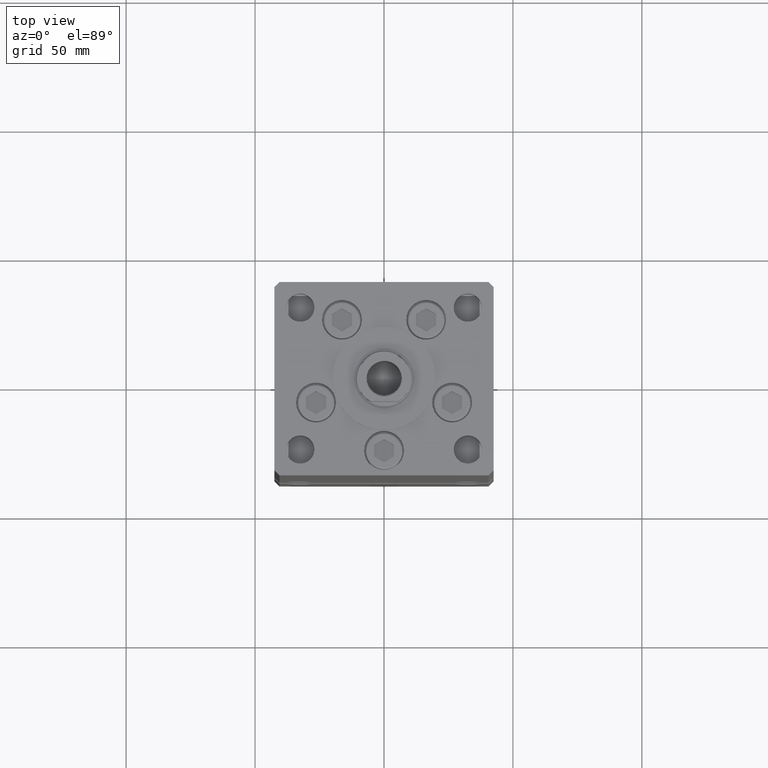
[diagram: clean part render]
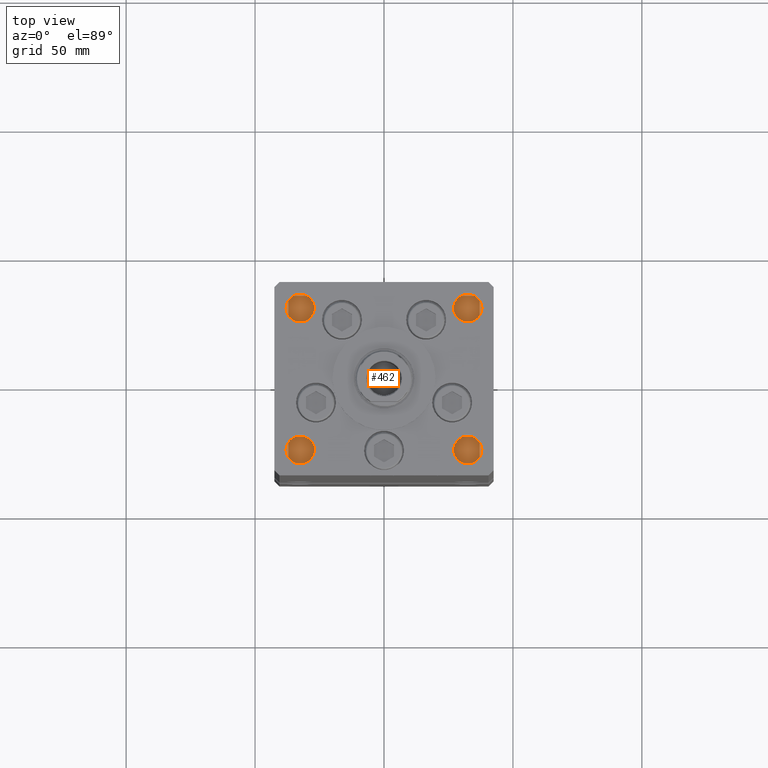
[diagram: same view with one face highlighted and labeled with its STEP entity id]
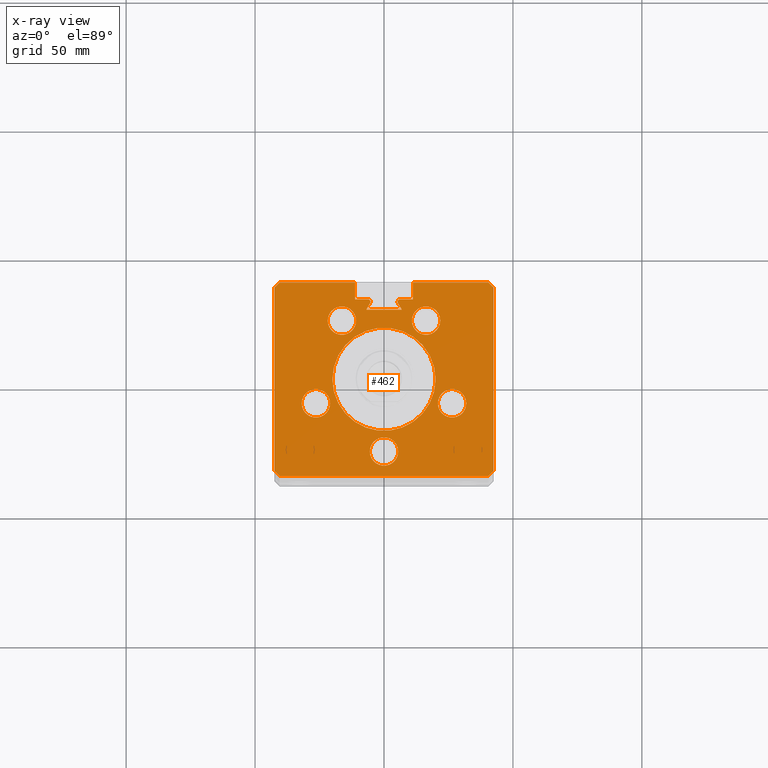
[diagram: x-ray of the same camera — body ghosted, the highlighted face saturated]
A machine part, top view. The second image highlights one B-rep face of the part: STEP entity #462.
The next image is the same camera in x-ray: the body ghosted, the highlighted face saturated — about 0% of this face is hidden behind the body in this view.
In plain terms, the highlighted planar face has unit normal (0, 0, -1).
Its self-contained STEP definition (entity closure, byte-faithful):
#30 = VERTEX_POINT ( 'NONE', #15072 ) ;
#270 = ORIENTED_EDGE ( 'NONE', *, *, #14479, .F. ) ;
#462 = ADVANCED_FACE ( 'NONE', ( #2395, #32227, #19842, #8008, #36538, #32488, #43796 ), #6945, .F. ) ;
#538 = CIRCLE ( 'NONE', #37458, 5.499999999999998224 ) ;
#1025 = DIRECTION ( 'NONE',  ( 0.7071067811865474617, -0.7071067811865474617, 0.000000000000000000 ) ) ;
#1323 = CARTESIAN_POINT ( 'NONE',  ( -40.50000000000000711, 37.50000000000000000, 218.5000000000000000 ) ) ;
#1530 = EDGE_CURVE ( 'NONE', #34392, #49526, #36023, .T. ) ;
#2390 = VECTOR ( 'NONE', #4753, 1000.000000000000000 ) ;
#2395 = FACE_BOUND ( 'NONE', #19877, .T. ) ;
#3162 = CARTESIAN_POINT ( 'NONE',  ( 10.82291334290543894, 22.75000000000000000, 218.5000000000000000 ) ) ;
#3621 = VECTOR ( 'NONE', #28473, 1000.000000000000114 ) ;
#3670 = ORIENTED_EDGE ( 'NONE', *, *, #46114, .F. ) ;
#4084 = CARTESIAN_POINT ( 'NONE',  ( -26.39865316429776954, -9.333333333333342807, 218.5000000000000000 ) ) ;
#4753 = DIRECTION ( 'NONE',  ( 0.000000000000000000, 1.000000000000000000, 0.000000000000000000 ) ) ;
#4828 = VERTEX_POINT ( 'NONE', #22495 ) ;
#4979 = DIRECTION ( 'NONE',  ( 1.000000000000000000, 0.000000000000000000, 0.000000000000000000 ) ) ;
#5123 = CARTESIAN_POINT ( 'NONE',  ( 20.00000000000000000, 2.449293598294706513E-15, 218.5000000000000000 ) ) ;
#5162 = EDGE_CURVE ( 'NONE', #33783, #51600, #48769, .T. ) ;
#5416 = ORIENTED_EDGE ( 'NONE', *, *, #39264, .F. ) ;
#5801 = VERTEX_POINT ( 'NONE', #41378 ) ;
#5906 = VECTOR ( 'NONE', #10680, 1000.000000000000114 ) ;
#6107 = DIRECTION ( 'NONE',  ( 1.000000000000000000, 0.000000000000000000, 0.000000000000000000 ) ) ;
#6190 = CARTESIAN_POINT ( 'NONE',  ( -16.84845819336020867, 9.727461873366657130, 218.5000000000000000 ) ) ;
#6417 = EDGE_CURVE ( 'NONE', #20406, #36373, #29326, .T. ) ;
#6490 = AXIS2_PLACEMENT_3D ( 'NONE', #32947, #20836, #37264 ) ;
#6523 = CARTESIAN_POINT ( 'NONE',  ( -20.89865316429777309, -9.333333333333342807, 218.5000000000000000 ) ) ;
#6658 = EDGE_CURVE ( 'NONE', #38090, #43198, #43037, .T. ) ;
#6940 = CARTESIAN_POINT ( 'NONE',  ( 11.24999999999999112, 37.50000000000000000, 218.5000000000000000 ) ) ;
#6945 = PLANE ( 'NONE',  #16231 ) ;
#7131 = CARTESIAN_POINT ( 'NONE',  ( -40.49999999999998579, -37.50000000000000711, 218.5000000000000000 ) ) ;
#7278 = EDGE_CURVE ( 'NONE', #45879, #41299, #48225, .T. ) ;
#8008 = FACE_BOUND ( 'NONE', #35235, .T. ) ;
#8118 = CARTESIAN_POINT ( 'NONE',  ( 16.84845819336020867, 9.727461873366657130, 218.5000000000000000 ) ) ;
#8524 = CIRCLE ( 'NONE', #45466, 5.500000000000000000 ) ;
#8623 = CARTESIAN_POINT ( 'NONE',  ( 40.50000000000000711, 37.50000000000000000, 218.5000000000000000 ) ) ;
#8865 = EDGE_CURVE ( 'NONE', #4828, #48680, #27146, .T. ) ;
#8934 = EDGE_CURVE ( 'NONE', #14057, #9628, #20938, .T. ) ;
#9283 = EDGE_CURVE ( 'NONE', #49405, #36387, #9647, .T. ) ;
#9539 = EDGE_CURVE ( 'NONE', #24204, #21402, #14764, .T. ) ;
#9573 = VECTOR ( 'NONE', #13459, 1000.000000000000114 ) ;
#9628 = VERTEX_POINT ( 'NONE', #46891 ) ;
#9647 = CIRCLE ( 'NONE', #22496, 5.499999999999998224 ) ;
#9729 = ORIENTED_EDGE ( 'NONE', *, *, #6658, .F. ) ;
#9857 = CARTESIAN_POINT ( 'NONE',  ( -42.50000000000001421, 35.50000000000000711, 218.5000000000000000 ) ) ;
#10273 = CARTESIAN_POINT ( 'NONE',  ( 0.000000000000000000, 0.000000000000000000, 218.5000000000000000 ) ) ;
#10308 = EDGE_CURVE ( 'NONE', #34392, #48712, #11876, .T. ) ;
#10680 = DIRECTION ( 'NONE',  ( -0.7071067811865500152, -0.7071067811865451302, 0.000000000000000000 ) ) ;
#11303 = DIRECTION ( 'NONE',  ( 0.000000000000000000, 0.000000000000000000, 1.000000000000000000 ) ) ;
#11329 = ORIENTED_EDGE ( 'NONE', *, *, #8934, .F. ) ;
#11346 = DIRECTION ( 'NONE',  ( 0.4999999999999994449, -0.8660254037844390407, 0.000000000000000000 ) ) ;
#11610 = CARTESIAN_POINT ( 'NONE',  ( -5.499999999999998224, -28.00000000000000000, 218.5000000000000000 ) ) ;
#11822 = EDGE_CURVE ( 'NONE', #36373, #14057, #48033, .T. ) ;
#11876 = LINE ( 'NONE', #8118, #49923 ) ;
#12404 = DIRECTION ( 'NONE',  ( 0.000000000000000000, 0.000000000000000000, 1.000000000000000000 ) ) ;
#12532 = ORIENTED_EDGE ( 'NONE', *, *, #1530, .F. ) ;
#12573 = CARTESIAN_POINT ( 'NONE',  ( -42.49999999999998579, -35.50000000000000711, 218.5000000000000000 ) ) ;
#12688 = DIRECTION ( 'NONE',  ( 1.000000000000000000, 0.000000000000000000, 0.000000000000000000 ) ) ;
#13040 = CARTESIAN_POINT ( 'NONE',  ( 16.32291334290543361, 22.75000000000000000, 218.5000000000000000 ) ) ;
#13077 = CARTESIAN_POINT ( 'NONE',  ( -11.24999999999999822, 0.000000000000000000, 218.5000000000000000 ) ) ;
#13078 = CARTESIAN_POINT ( 'NONE',  ( -11.24999999999999822, 37.50000000000000000, 218.5000000000000000 ) ) ;
#13459 = DIRECTION ( 'NONE',  ( 0.7071067811865500152, -0.7071067811865451302, 0.000000000000000000 ) ) ;
#13563 = DIRECTION ( 'NONE',  ( 0.000000000000000000, 0.000000000000000000, 1.000000000000000000 ) ) ;
#13876 = CARTESIAN_POINT ( 'NONE',  ( -11.24999999999999822, 31.00000000000000000, 218.5000000000000000 ) ) ;
#13912 = EDGE_CURVE ( 'NONE', #48712, #4828, #38302, .T. ) ;
#14057 = VERTEX_POINT ( 'NONE', #52491 ) ;
#14124 = DIRECTION ( 'NONE',  ( 1.000000000000000000, 0.000000000000000000, 0.000000000000000000 ) ) ;
#14479 = EDGE_CURVE ( 'NONE', #52620, #49742, #37132, .T. ) ;
#14764 = CIRCLE ( 'NONE', #23370, 5.500000000000000000 ) ;
#15056 = CARTESIAN_POINT ( 'NONE',  ( -42.49999999999998579, -35.50000000000000711, 218.5000000000000000 ) ) ;
#15072 = CARTESIAN_POINT ( 'NONE',  ( 31.89865316429776954, -9.333333333333339255, 218.5000000000000000 ) ) ;
#15647 = CARTESIAN_POINT ( 'NONE',  ( 11.24999999999999822, 0.000000000000000000, 218.5000000000000000 ) ) ;
#15845 = DIRECTION ( 'NONE',  ( 0.000000000000000000, 0.000000000000000000, -1.000000000000000000 ) ) ;
#15902 = VERTEX_POINT ( 'NONE', #7131 ) ;
#16069 = DIRECTION ( 'NONE',  ( 0.000000000000000000, 0.000000000000000000, -1.000000000000000000 ) ) ;
#16231 = AXIS2_PLACEMENT_3D ( 'NONE', #48898, #16069, #19045 ) ;
#16712 = CARTESIAN_POINT ( 'NONE',  ( -6.183333333333997928, 30.06666666666599852, 218.5000000000000000 ) ) ;
#16763 = CARTESIAN_POINT ( 'NONE',  ( 6.876153656360465938, 26.99999999999986855, 218.5000000000000000 ) ) ;
#16792 = CARTESIAN_POINT ( 'NONE',  ( 5.500000000000001776, -28.00000000000000000, 218.5000000000000000 ) ) ;
#16841 = CARTESIAN_POINT ( 'NONE',  ( 6.183333333333997928, 31.00000000000000000, 218.5000000000000000 ) ) ;
#17313 = DIRECTION ( 'NONE',  ( 0.000000000000000000, 0.000000000000000000, 1.000000000000000000 ) ) ;
#17401 = CIRCLE ( 'NONE', #22570, 5.499999999999998224 ) ;
#17936 = CARTESIAN_POINT ( 'NONE',  ( 6.183333333333997928, 30.06666666666599852, 218.5000000000000000 ) ) ;
#18037 = LINE ( 'NONE', #34458, #36825 ) ;
#18126 = EDGE_CURVE ( 'NONE', #49742, #48680, #42428, .T. ) ;
#18380 = CARTESIAN_POINT ( 'NONE',  ( -20.00000000000000000, 0.000000000000000000, 218.5000000000000000 ) ) ;
#18564 = ORIENTED_EDGE ( 'NONE', *, *, #46691, .T. ) ;
#18595 = CARTESIAN_POINT ( 'NONE',  ( 26.39865316429776954, -9.333333333333339255, 218.5000000000000000 ) ) ;
#18681 = CARTESIAN_POINT ( 'NONE',  ( 0.000000000000000000, 31.00000000000000000, 218.5000000000000000 ) ) ;
#18749 = LINE ( 'NONE', #1323, #5906 ) ;
#18883 = EDGE_CURVE ( 'NONE', #15902, #9628, #38766, .T. ) ;
#19045 = DIRECTION ( 'NONE',  ( -1.000000000000000000, 0.000000000000000000, -0.000000000000000000 ) ) ;
#19228 = VERTEX_POINT ( 'NONE', #6940 ) ;
#19801 = ORIENTED_EDGE ( 'NONE', *, *, #47774, .F. ) ;
#19842 = FACE_BOUND ( 'NONE', #49470, .T. ) ;
#19877 = EDGE_LOOP ( 'NONE', ( #36104, #5416 ) ) ;
#19952 = VECTOR ( 'NONE', #47147, 1000.000000000000000 ) ;
#20005 = CIRCLE ( 'NONE', #49193, 5.499999999999998224 ) ;
#20118 = CIRCLE ( 'NONE', #45909, 5.499999999999998224 ) ;
#20280 = CARTESIAN_POINT ( 'NONE',  ( 1.714505518806294638E-15, -28.00000000000000000, 218.5000000000000000 ) ) ;
#20406 = VERTEX_POINT ( 'NONE', #36163 ) ;
#20546 = ORIENTED_EDGE ( 'NONE', *, *, #35838, .T. ) ;
#20737 = DIRECTION ( 'NONE',  ( 1.000000000000000000, 0.000000000000000000, 0.000000000000000000 ) ) ;
#20836 = DIRECTION ( 'NONE',  ( 0.000000000000000000, 0.000000000000000000, 1.000000000000000000 ) ) ;
#20938 = LINE ( 'NONE', #48923, #3621 ) ;
#21144 = DIRECTION ( 'NONE',  ( 0.000000000000000000, 0.000000000000000000, 1.000000000000000000 ) ) ;
#21402 = VERTEX_POINT ( 'NONE', #11610 ) ;
#21536 = ORIENTED_EDGE ( 'NONE', *, *, #9283, .F. ) ;
#22056 = EDGE_LOOP ( 'NONE', ( #49763, #9729 ) ) ;
#22093 = VERTEX_POINT ( 'NONE', #38567 ) ;
#22215 = LINE ( 'NONE', #9857, #29608 ) ;
#22495 = CARTESIAN_POINT ( 'NONE',  ( -6.876153656360465938, 26.99999999999986855, 218.5000000000000000 ) ) ;
#22496 = AXIS2_PLACEMENT_3D ( 'NONE', #38097, #21144, #29220 ) ;
#22497 = CARTESIAN_POINT ( 'NONE',  ( 20.89865316429777309, -9.333333333333339255, 218.5000000000000000 ) ) ;
#22570 = AXIS2_PLACEMENT_3D ( 'NONE', #13040, #37789, #4979 ) ;
#22658 = CARTESIAN_POINT ( 'NONE',  ( 0.000000000000000000, 26.99999999999986855, 218.5000000000000000 ) ) ;
#22712 = LINE ( 'NONE', #18681, #49616 ) ;
#23048 = VERTEX_POINT ( 'NONE', #13876 ) ;
#23147 = ORIENTED_EDGE ( 'NONE', *, *, #28803, .F. ) ;
#23368 = AXIS2_PLACEMENT_3D ( 'NONE', #41131, #15845, #49740 ) ;
#23370 = AXIS2_PLACEMENT_3D ( 'NONE', #33461, #29156, #29686 ) ;
#23458 = VERTEX_POINT ( 'NONE', #15056 ) ;
#23833 = CIRCLE ( 'NONE', #24679, 20.00000000000000000 ) ;
#24204 = VERTEX_POINT ( 'NONE', #16792 ) ;
#24600 = CARTESIAN_POINT ( 'NONE',  ( 21.82291334290543361, 22.75000000000000000, 218.5000000000000000 ) ) ;
#24679 = AXIS2_PLACEMENT_3D ( 'NONE', #10273, #31240, #51159 ) ;
#25185 = EDGE_CURVE ( 'NONE', #40719, #30, #20005, .T. ) ;
#25207 = EDGE_CURVE ( 'NONE', #36387, #49405, #17401, .T. ) ;
#25862 = ORIENTED_EDGE ( 'NONE', *, *, #18883, .T. ) ;
#26353 = DIRECTION ( 'NONE',  ( 0.000000000000000000, 0.000000000000000000, 1.000000000000000000 ) ) ;
#26653 = DIRECTION ( 'NONE',  ( 1.000000000000000000, 0.000000000000000000, 0.000000000000000000 ) ) ;
#26941 = VECTOR ( 'NONE', #26653, 1000.000000000000000 ) ;
#26980 = DIRECTION ( 'NONE',  ( -1.000000000000000000, 0.000000000000000000, 0.000000000000000000 ) ) ;
#27146 = LINE ( 'NONE', #6190, #33684 ) ;
#27778 = AXIS2_PLACEMENT_3D ( 'NONE', #16712, #33135, #12688 ) ;
#27798 = VERTEX_POINT ( 'NONE', #6523 ) ;
#28076 = EDGE_CURVE ( 'NONE', #27798, #51287, #49271, .T. ) ;
#28473 = DIRECTION ( 'NONE',  ( -0.7071067811865474617, -0.7071067811865474617, 0.000000000000000000 ) ) ;
#28803 = EDGE_CURVE ( 'NONE', #30, #40719, #20118, .T. ) ;
#29156 = DIRECTION ( 'NONE',  ( 0.000000000000000000, 0.000000000000000000, 1.000000000000000000 ) ) ;
#29220 = DIRECTION ( 'NONE',  ( 1.000000000000000000, 0.000000000000000000, 0.000000000000000000 ) ) ;
#29326 = LINE ( 'NONE', #8623, #9573 ) ;
#29608 = VECTOR ( 'NONE', #30029, 1000.000000000000000 ) ;
#29686 = DIRECTION ( 'NONE',  ( 1.000000000000000000, 0.000000000000000000, 0.000000000000000000 ) ) ;
#29963 = DIRECTION ( 'NONE',  ( 1.000000000000000000, 0.000000000000000000, 0.000000000000000000 ) ) ;
#30029 = DIRECTION ( 'NONE',  ( 3.909236002201255146E-16, -1.000000000000000000, 0.000000000000000000 ) ) ;
#30062 = ORIENTED_EDGE ( 'NONE', *, *, #18126, .F. ) ;
#30136 = VECTOR ( 'NONE', #40431, 1000.000000000000000 ) ;
#30380 = CARTESIAN_POINT ( 'NONE',  ( -16.32291334290543361, 22.74999999999999645, 218.5000000000000000 ) ) ;
#30675 = DIRECTION ( 'NONE',  ( 1.000000000000000000, 0.000000000000000000, 0.000000000000000000 ) ) ;
#31080 = ORIENTED_EDGE ( 'NONE', *, *, #7278, .F. ) ;
#31240 = DIRECTION ( 'NONE',  ( -0.000000000000000000, 0.000000000000000000, 1.000000000000000000 ) ) ;
#31372 = CIRCLE ( 'NONE', #6490, 5.500000000000000000 ) ;
#32227 = FACE_BOUND ( 'NONE', #39520, .T. ) ;
#32488 = FACE_OUTER_BOUND ( 'NONE', #48454, .T. ) ;
#32947 = CARTESIAN_POINT ( 'NONE',  ( -16.32291334290543361, 22.74999999999999645, 218.5000000000000000 ) ) ;
#33135 = DIRECTION ( 'NONE',  ( 0.000000000000000000, 0.000000000000000000, -1.000000000000000000 ) ) ;
#33461 = CARTESIAN_POINT ( 'NONE',  ( 1.714505518806294638E-15, -28.00000000000000000, 218.5000000000000000 ) ) ;
#33684 = VECTOR ( 'NONE', #47331, 999.9999999999998863 ) ;
#33734 = DIRECTION ( 'NONE',  ( 1.000000000000000000, 0.000000000000000000, 0.000000000000000000 ) ) ;
#33751 = DIRECTION ( 'NONE',  ( 0.000000000000000000, 0.000000000000000000, 1.000000000000000000 ) ) ;
#33752 = DIRECTION ( 'NONE',  ( -3.909236002201255146E-16, -1.000000000000000000, 0.000000000000000000 ) ) ;
#33783 = VERTEX_POINT ( 'NONE', #47258 ) ;
#33854 = CARTESIAN_POINT ( 'NONE',  ( -31.89865316429776954, -9.333333333333342807, 218.5000000000000000 ) ) ;
#33916 = CARTESIAN_POINT ( 'NONE',  ( 5.375042956467945388, 29.59999999999899600, 218.5000000000000000 ) ) ;
#34392 = VERTEX_POINT ( 'NONE', #33916 ) ;
#34439 = ORIENTED_EDGE ( 'NONE', *, *, #25185, .F. ) ;
#34458 = CARTESIAN_POINT ( 'NONE',  ( -11.24999999999999822, 37.50000000000000000, 218.5000000000000000 ) ) ;
#34664 = ORIENTED_EDGE ( 'NONE', *, *, #8865, .T. ) ;
#35104 = VECTOR ( 'NONE', #26980, 1000.000000000000000 ) ;
#35228 = ORIENTED_EDGE ( 'NONE', *, *, #25207, .F. ) ;
#35235 = EDGE_LOOP ( 'NONE', ( #35228, #21536 ) ) ;
#35732 = ORIENTED_EDGE ( 'NONE', *, *, #43514, .T. ) ;
#35763 = EDGE_LOOP ( 'NONE', ( #31080, #19801 ) ) ;
#35838 = EDGE_CURVE ( 'NONE', #19228, #5801, #48738, .T. ) ;
#36023 = CIRCLE ( 'NONE', #49769, 0.9333333333340008142 ) ;
#36093 = ORIENTED_EDGE ( 'NONE', *, *, #51384, .T. ) ;
#36104 = ORIENTED_EDGE ( 'NONE', *, *, #28076, .F. ) ;
#36163 = CARTESIAN_POINT ( 'NONE',  ( 40.50000000000000711, 37.50000000000000000, 218.5000000000000000 ) ) ;
#36255 = EDGE_CURVE ( 'NONE', #22093, #23458, #22215, .T. ) ;
#36373 = VERTEX_POINT ( 'NONE', #41013 ) ;
#36387 = VERTEX_POINT ( 'NONE', #24600 ) ;
#36453 = ORIENTED_EDGE ( 'NONE', *, *, #9539, .F. ) ;
#36538 = FACE_BOUND ( 'NONE', #22056, .T. ) ;
#36825 = VECTOR ( 'NONE', #30675, 1000.000000000000000 ) ;
#37094 = EDGE_CURVE ( 'NONE', #23458, #15902, #37857, .T. ) ;
#37132 = CIRCLE ( 'NONE', #23368, 0.9333333333340008142 ) ;
#37223 = CARTESIAN_POINT ( 'NONE',  ( -5.375042956467944499, 29.59999999999899600, 218.4999999999999716 ) ) ;
#37264 = DIRECTION ( 'NONE',  ( 1.000000000000000000, 0.000000000000000000, 0.000000000000000000 ) ) ;
#37342 = EDGE_CURVE ( 'NONE', #43198, #38090, #31372, .T. ) ;
#37458 = AXIS2_PLACEMENT_3D ( 'NONE', #37523, #13563, #29963 ) ;
#37523 = CARTESIAN_POINT ( 'NONE',  ( -26.39865316429776954, -9.333333333333342807, 218.5000000000000000 ) ) ;
#37588 = CARTESIAN_POINT ( 'NONE',  ( 0.000000000000000000, 31.00000000000000000, 218.5000000000000000 ) ) ;
#37665 = ORIENTED_EDGE ( 'NONE', *, *, #52937, .F. ) ;
#37789 = DIRECTION ( 'NONE',  ( 0.000000000000000000, 0.000000000000000000, 1.000000000000000000 ) ) ;
#37857 = LINE ( 'NONE', #12573, #44275 ) ;
#37916 = AXIS2_PLACEMENT_3D ( 'NONE', #30380, #26353, #42756 ) ;
#38056 = DIRECTION ( 'NONE',  ( 1.000000000000000000, 0.000000000000000000, 0.000000000000000000 ) ) ;
#38090 = VERTEX_POINT ( 'NONE', #48369 ) ;
#38097 = CARTESIAN_POINT ( 'NONE',  ( 16.32291334290543361, 22.75000000000000000, 218.5000000000000000 ) ) ;
#38224 = VECTOR ( 'NONE', #45238, 1000.000000000000000 ) ;
#38302 = LINE ( 'NONE', #22658, #19952 ) ;
#38567 = CARTESIAN_POINT ( 'NONE',  ( -42.50000000000001421, 35.50000000000000711, 218.5000000000000000 ) ) ;
#38766 = LINE ( 'NONE', #42276, #26941 ) ;
#39264 = EDGE_CURVE ( 'NONE', #51287, #27798, #538, .T. ) ;
#39520 = EDGE_LOOP ( 'NONE', ( #36453, #37665 ) ) ;
#40431 = DIRECTION ( 'NONE',  ( 1.000000000000000000, 0.000000000000000000, 0.000000000000000000 ) ) ;
#40719 = VERTEX_POINT ( 'NONE', #22497 ) ;
#41013 = CARTESIAN_POINT ( 'NONE',  ( 42.50000000000001421, 35.50000000000000711, 218.5000000000000000 ) ) ;
#41131 = CARTESIAN_POINT ( 'NONE',  ( -6.183333333333997928, 30.06666666666599852, 218.5000000000000000 ) ) ;
#41299 = VERTEX_POINT ( 'NONE', #5123 ) ;
#41378 = CARTESIAN_POINT ( 'NONE',  ( 11.24999999999999822, 31.00000000000000000, 218.5000000000000000 ) ) ;
#42276 = CARTESIAN_POINT ( 'NONE',  ( -40.49999999999998579, -37.50000000000000711, 218.5000000000000000 ) ) ;
#42428 = CIRCLE ( 'NONE', #27778, 0.9333333333340008142 ) ;
#42756 = DIRECTION ( 'NONE',  ( 1.000000000000000000, 0.000000000000000000, 0.000000000000000000 ) ) ;
#43037 = CIRCLE ( 'NONE', #37916, 5.500000000000000000 ) ;
#43198 = VERTEX_POINT ( 'NONE', #46733 ) ;
#43514 = EDGE_CURVE ( 'NONE', #5801, #49526, #22712, .T. ) ;
#43796 = FACE_BOUND ( 'NONE', #35763, .T. ) ;
#43968 = AXIS2_PLACEMENT_3D ( 'NONE', #51236, #50972, #14124 ) ;
#44275 = VECTOR ( 'NONE', #1025, 1000.000000000000114 ) ;
#44280 = EDGE_CURVE ( 'NONE', #23048, #51600, #46162, .T. ) ;
#44429 = CARTESIAN_POINT ( 'NONE',  ( -5.249999999999996447, 30.06666666666599852, 218.5000000000000000 ) ) ;
#44554 = ORIENTED_EDGE ( 'NONE', *, *, #10308, .T. ) ;
#44802 = VECTOR ( 'NONE', #33752, 1000.000000000000000 ) ;
#45238 = DIRECTION ( 'NONE',  ( -0.000000000000000000, -1.000000000000000000, 0.000000000000000000 ) ) ;
#45461 = ORIENTED_EDGE ( 'NONE', *, *, #11822, .F. ) ;
#45466 = AXIS2_PLACEMENT_3D ( 'NONE', #20280, #17313, #33734 ) ;
#45879 = VERTEX_POINT ( 'NONE', #18380 ) ;
#45909 = AXIS2_PLACEMENT_3D ( 'NONE', #18595, #11303, #48430 ) ;
#46114 = EDGE_CURVE ( 'NONE', #19228, #20406, #18037, .T. ) ;
#46162 = LINE ( 'NONE', #13077, #2390 ) ;
#46171 = CARTESIAN_POINT ( 'NONE',  ( -6.183333333333997928, 31.00000000000000000, 218.5000000000000000 ) ) ;
#46691 = EDGE_CURVE ( 'NONE', #52620, #23048, #47167, .T. ) ;
#46733 = CARTESIAN_POINT ( 'NONE',  ( -10.82291334290543539, 22.74999999999999645, 218.5000000000000000 ) ) ;
#46891 = CARTESIAN_POINT ( 'NONE',  ( 40.49999999999998579, -37.50000000000000711, 218.5000000000000000 ) ) ;
#47147 = DIRECTION ( 'NONE',  ( -1.000000000000000000, 0.000000000000000000, 0.000000000000000000 ) ) ;
#47167 = LINE ( 'NONE', #37588, #35104 ) ;
#47258 = CARTESIAN_POINT ( 'NONE',  ( -40.50000000000000711, 37.50000000000000000, 218.5000000000000000 ) ) ;
#47331 = DIRECTION ( 'NONE',  ( 0.4999999999999994449, 0.8660254037844390407, 0.000000000000000000 ) ) ;
#47774 = EDGE_CURVE ( 'NONE', #41299, #45879, #23833, .T. ) ;
#48033 = LINE ( 'NONE', #49890, #44802 ) ;
#48051 = ORIENTED_EDGE ( 'NONE', *, *, #5162, .F. ) ;
#48225 = CIRCLE ( 'NONE', #43968, 20.00000000000000000 ) ;
#48369 = CARTESIAN_POINT ( 'NONE',  ( -21.82291334290543361, 22.74999999999999645, 218.5000000000000000 ) ) ;
#48430 = DIRECTION ( 'NONE',  ( 1.000000000000000000, 0.000000000000000000, 0.000000000000000000 ) ) ;
#48454 = EDGE_LOOP ( 'NONE', ( #18564, #50868, #48051, #36093, #48932, #52340, #25862, #11329, #45461, #50777, #3670, #20546, #35732, #12532, #44554, #51570, #34664, #30062, #270 ) ) ;
#48680 = VERTEX_POINT ( 'NONE', #37223 ) ;
#48712 = VERTEX_POINT ( 'NONE', #16763 ) ;
#48738 = LINE ( 'NONE', #15647, #38224 ) ;
#48769 = LINE ( 'NONE', #52003, #30136 ) ;
#48898 = CARTESIAN_POINT ( 'NONE',  ( 0.000000000000000000, 0.000000000000000000, 218.5000000000000000 ) ) ;
#48923 = CARTESIAN_POINT ( 'NONE',  ( 42.49999999999998579, -35.50000000000000711, 218.5000000000000000 ) ) ;
#48932 = ORIENTED_EDGE ( 'NONE', *, *, #36255, .T. ) ;
#49193 = AXIS2_PLACEMENT_3D ( 'NONE', #49889, #33751, #38056 ) ;
#49271 = CIRCLE ( 'NONE', #50162, 5.499999999999998224 ) ;
#49405 = VERTEX_POINT ( 'NONE', #3162 ) ;
#49470 = EDGE_LOOP ( 'NONE', ( #23147, #34439 ) ) ;
#49526 = VERTEX_POINT ( 'NONE', #16841 ) ;
#49616 = VECTOR ( 'NONE', #51491, 1000.000000000000000 ) ;
#49740 = DIRECTION ( 'NONE',  ( 1.000000000000000000, 0.000000000000000000, 0.000000000000000000 ) ) ;
#49742 = VERTEX_POINT ( 'NONE', #44429 ) ;
#49763 = ORIENTED_EDGE ( 'NONE', *, *, #37342, .F. ) ;
#49769 = AXIS2_PLACEMENT_3D ( 'NONE', #17936, #50757, #6107 ) ;
#49889 = CARTESIAN_POINT ( 'NONE',  ( 26.39865316429776954, -9.333333333333339255, 218.5000000000000000 ) ) ;
#49890 = CARTESIAN_POINT ( 'NONE',  ( 42.50000000000001421, 35.50000000000000711, 218.5000000000000000 ) ) ;
#49923 = VECTOR ( 'NONE', #11346, 999.9999999999998863 ) ;
#50162 = AXIS2_PLACEMENT_3D ( 'NONE', #4084, #12404, #20737 ) ;
#50757 = DIRECTION ( 'NONE',  ( 0.000000000000000000, 0.000000000000000000, -1.000000000000000000 ) ) ;
#50777 = ORIENTED_EDGE ( 'NONE', *, *, #6417, .F. ) ;
#50868 = ORIENTED_EDGE ( 'NONE', *, *, #44280, .T. ) ;
#50972 = DIRECTION ( 'NONE',  ( -0.000000000000000000, 0.000000000000000000, 1.000000000000000000 ) ) ;
#51159 = DIRECTION ( 'NONE',  ( 1.000000000000000000, 0.000000000000000000, 0.000000000000000000 ) ) ;
#51236 = CARTESIAN_POINT ( 'NONE',  ( 0.000000000000000000, 0.000000000000000000, 218.5000000000000000 ) ) ;
#51287 = VERTEX_POINT ( 'NONE', #33854 ) ;
#51384 = EDGE_CURVE ( 'NONE', #33783, #22093, #18749, .T. ) ;
#51491 = DIRECTION ( 'NONE',  ( -1.000000000000000000, 0.000000000000000000, 0.000000000000000000 ) ) ;
#51570 = ORIENTED_EDGE ( 'NONE', *, *, #13912, .T. ) ;
#51600 = VERTEX_POINT ( 'NONE', #13078 ) ;
#52003 = CARTESIAN_POINT ( 'NONE',  ( -11.24999999999999822, 37.50000000000000000, 218.5000000000000000 ) ) ;
#52340 = ORIENTED_EDGE ( 'NONE', *, *, #37094, .T. ) ;
#52491 = CARTESIAN_POINT ( 'NONE',  ( 42.49999999999998579, -35.50000000000000711, 218.5000000000000000 ) ) ;
#52620 = VERTEX_POINT ( 'NONE', #46171 ) ;
#52937 = EDGE_CURVE ( 'NONE', #21402, #24204, #8524, .T. ) ;